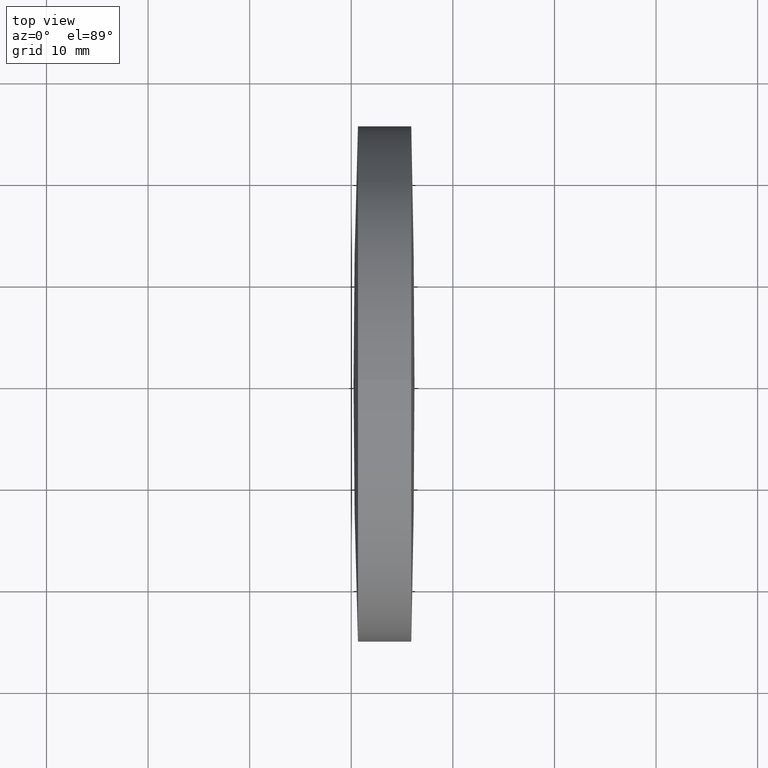
[diagram: clean part render]
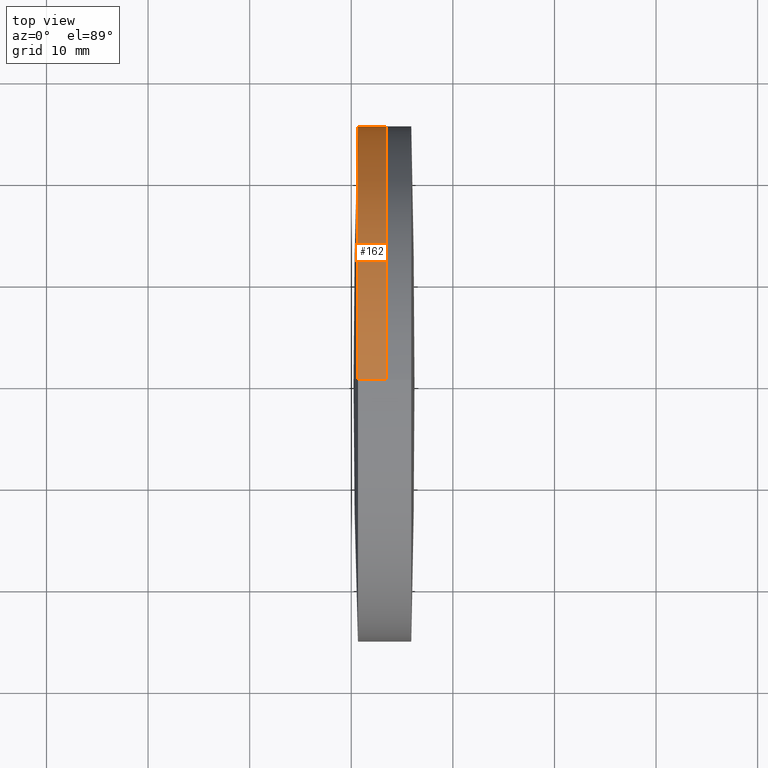
[diagram: same view with one face highlighted and labeled with its STEP entity id]
A machine part, top view. The second image highlights one B-rep face of the part: STEP entity #162.
In plain terms, the highlighted cylindrical surface (partial cylindrical patch) has radius 25.4 mm, axis along (-1, -0, -0).
Its self-contained STEP definition (entity closure, byte-faithful):
#15 = LINE ( 'NONE', #83, #294 ) ;
#16 = ORIENTED_EDGE ( 'NONE', *, *, #238, .F. ) ;
#35 = AXIS2_PLACEMENT_3D ( 'NONE', #117, #282, #96 ) ;
#42 = ORIENTED_EDGE ( 'NONE', *, *, #223, .T. ) ;
#43 = CARTESIAN_POINT ( 'NONE',  ( 610.6585094951291200, 3.110602869834124200E-015, -25.40000000000113200 ) ) ;
#44 = DIRECTION ( 'NONE',  ( -1.000000000000000000, -0.0000000000000000000, -0.0000000000000000000 ) ) ;
#47 = DIRECTION ( 'NONE',  ( 0.0000000000000000000, 0.0000000000000000000, 1.000000000000000000 ) ) ;
#53 = VERTEX_POINT ( 'NONE', #299 ) ;
#58 = AXIS2_PLACEMENT_3D ( 'NONE', #73, #234, #47 ) ;
#60 = EDGE_LOOP ( 'NONE', ( #309, #42, #16, #99 ) ) ;
#63 = CYLINDRICAL_SURFACE ( 'NONE', #168, 25.39999999999922100 ) ;
#67 = LINE ( 'NONE', #286, #273 ) ;
#73 = CARTESIAN_POINT ( 'NONE',  ( 613.4104506559709800, 0.0000000000000000000, 0.0000000000000000000 ) ) ;
#83 = CARTESIAN_POINT ( 'NONE',  ( 124.5233095260452400, 0.0000000000000000000, 25.39999999999922100 ) ) ;
#87 = DIRECTION ( 'NONE',  ( -1.000000000000000000, -0.0000000000000000000, -0.0000000000000000000 ) ) ;
#95 = EDGE_CURVE ( 'NONE', #215, #248, #15, .T. ) ;
#96 = DIRECTION ( 'NONE',  ( 0.0000000000000000000, 0.0000000000000000000, 1.000000000000000000 ) ) ;
#99 = ORIENTED_EDGE ( 'NONE', *, *, #95, .F. ) ;
#117 = CARTESIAN_POINT ( 'NONE',  ( 610.6585094951291200, 0.0000000000000000000, 0.0000000000000000000 ) ) ;
#126 = DIRECTION ( 'NONE',  ( 0.0000000000000000000, 0.0000000000000000000, 1.000000000000000000 ) ) ;
#128 = CIRCLE ( 'NONE', #58, 25.39999999999921700 ) ;
#157 = CARTESIAN_POINT ( 'NONE',  ( 124.5233095260452400, 0.0000000000000000000, 0.0000000000000000000 ) ) ;
#162 = ADVANCED_FACE ( 'NONE', ( #276 ), #63, .T. ) ;
#168 = AXIS2_PLACEMENT_3D ( 'NONE', #157, #316, #126 ) ;
#198 = CIRCLE ( 'NONE', #35, 25.39999999999922800 ) ;
#215 = VERTEX_POINT ( 'NONE', #342 ) ;
#223 = EDGE_CURVE ( 'NONE', #53, #280, #67, .T. ) ;
#229 = CARTESIAN_POINT ( 'NONE',  ( 610.6585094951291200, 0.0000000000000000000, 25.39999999999875200 ) ) ;
#234 = DIRECTION ( 'NONE',  ( -1.000000000000000000, -0.0000000000000000000, -0.0000000000000000000 ) ) ;
#238 = EDGE_CURVE ( 'NONE', #248, #280, #198, .T. ) ;
#248 = VERTEX_POINT ( 'NONE', #229 ) ;
#269 = EDGE_CURVE ( 'NONE', #215, #53, #128, .T. ) ;
#273 = VECTOR ( 'NONE', #44, 1000.000000000000000 ) ;
#276 = FACE_OUTER_BOUND ( 'NONE', #60, .T. ) ;
#280 = VERTEX_POINT ( 'NONE', #43 ) ;
#282 = DIRECTION ( 'NONE',  ( -1.000000000000000000, -0.0000000000000000000, -0.0000000000000000000 ) ) ;
#286 = CARTESIAN_POINT ( 'NONE',  ( 124.5233095260452400, 3.110602869834181800E-015, -25.39999999999922100 ) ) ;
#294 = VECTOR ( 'NONE', #87, 1000.000000000000000 ) ;
#299 = CARTESIAN_POINT ( 'NONE',  ( 613.4104506559709800, 3.110602869834181400E-015, -25.39999999999921700 ) ) ;
#309 = ORIENTED_EDGE ( 'NONE', *, *, #269, .T. ) ;
#316 = DIRECTION ( 'NONE',  ( -1.000000000000000000, -0.0000000000000000000, -0.0000000000000000000 ) ) ;
#342 = CARTESIAN_POINT ( 'NONE',  ( 613.4104506559709800, 0.0000000000000000000, 25.39999999999921700 ) ) ;